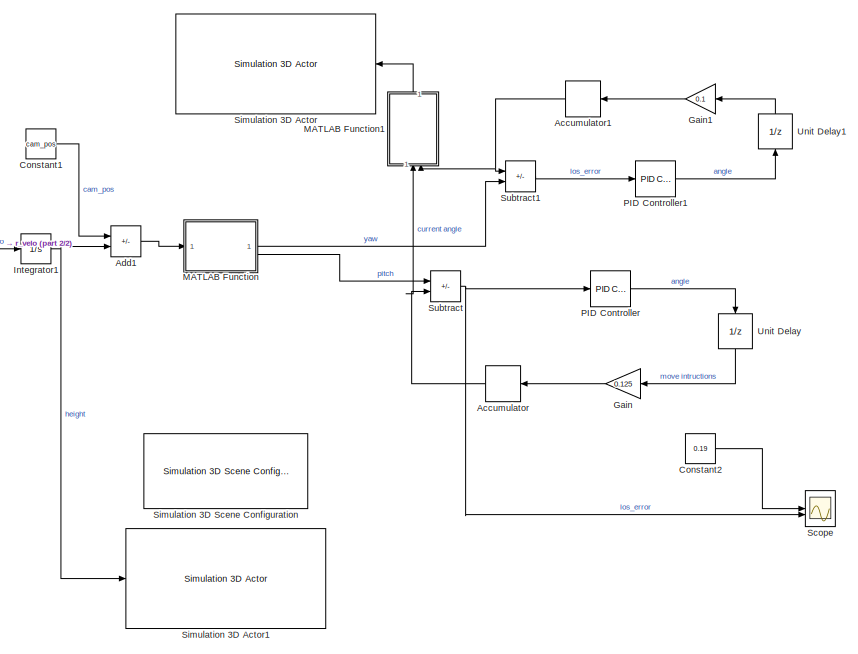
[diagram: root canvas - part 1/2, right side, full height]
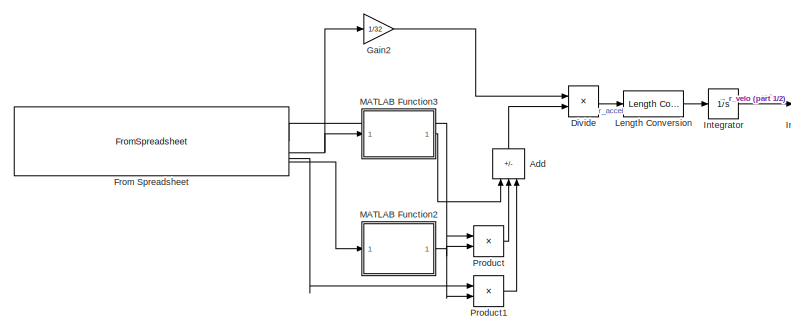
[diagram: root canvas - part 2/2, middle left region]
MODEL slx_5a3b48c3b5a7
KIND model
CONFIG AbsTol = auto
CONFIG EnableMultiTasking = off
CONFIG FixedStep = auto
CONFIG MaxStep = auto
CONFIG MinStep = auto
CONFIG RelTol = 1e-3
CONFIG SampleTimeConstraint = Unconstrained
CONFIG SolverName = VariableStepAuto
CONFIG StartTime = 0.0
CONFIG StopTime = 30
WORKSPACE source: mxarray member
WORKSPACE D = -0.000621609661279
WORKSPACE I = 0.087802518405
WORKSPACE N = 25.6156362926
WORKSPACE P = 2.22558760333
WORKSPACE cam_pos = [10 0 1]
WORKSPACE fov = 1.57079632679
WORKSPACE rocket_accel = [40 0 1000]
WORKSPACE sT = 0.0714285714286
WORKSPACE yawD = -0.0126517123405
WORKSPACE yawI = 0.00750088180469
WORKSPACE yawN = 3.59781859781
WORKSPACE yawP = 0.0524976391519
BLOCK [DiscreteIntegrator] Accumulator
  ICPrevOutput = DiscIntNeverNeededParam
  ICPrevScaledInput = DiscIntNeverNeededParam
  InitialConditionSetting = Auto
  IntegratorMethod = Accumulation: Forward Euler
  SampleTime = -1
BLOCK [DiscreteIntegrator] Accumulator1
  ICPrevOutput = DiscIntNeverNeededParam
  ICPrevScaledInput = DiscIntNeverNeededParam
  InitialConditionSetting = Auto
  IntegratorMethod = Accumulation: Forward Euler
  SampleTime = -1
BLOCK [Sum] Add
  IconShape = rectangular
  Inputs = -+-
  NameLocation = right
BLOCK [Sum] Add1
  IconShape = rectangular
  Inputs = -+
BLOCK [Constant] Constant1
  Value = cam_pos
  VectorParams1D = off
BLOCK [Constant] Constant2
  Value = 0.19
BLOCK [Product] Divide
  Inputs = /*
BLOCK [FromSpreadsheet] From Spreadsheet
  FileName = <userpath>\Documents\MATLAB\slprj\sim\varcache\ustarr_sim\tmwinternal\ringoV8_33ms.CSV
  Range = A1:A1000,H1:J1000,U1:U1000
  SheetName = ringoV8_33ms
BLOCK [Gain] Gain
  Gain = 0.125
BLOCK [Gain] Gain1
  Gain = 0.1
BLOCK [Gain] Gain2
  Gain = 1/32
BLOCK [Integrator] Integrator
BLOCK [Integrator] Integrator1
  InitialCondition = [500 0 1]
BLOCK [Reference] Length Conversion  REF=aerolibconvert2/Length Conversion
  SourceBlock = aerolibconvert2/Length Conversion
  SourceType = Length Conversion
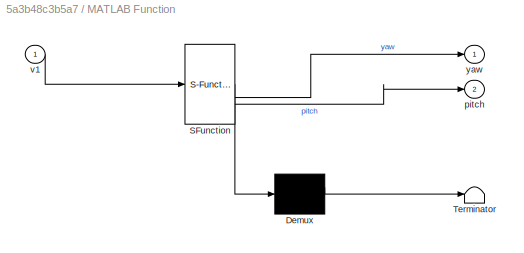
BLOCK [SubSystem] MATLAB Function
  ErrorFcn = Stateflow.Translate.translate
  PermitHierarchicalResolution = ExplicitOnly
  SFBlockType = MATLAB Function
  TreatAsAtomicUnit = on
BLOCK [Demux] MATLAB Function/ Demux 
  Outputs = 1
BLOCK [S-Function] MATLAB Function/ SFunction 
  EnableBusSupport = off
  FunctionName = sf_sfun
  PortCounts = [1 3]
  SFcnIsStateOwnerBlock = off
  SFunctionDeploymentMode = off
  Tag = Stateflow S-Function 2
BLOCK [Terminator] MATLAB Function/ Terminator 
BLOCK [Outport] MATLAB Function/pitch
  Port = 2
BLOCK [Inport] MATLAB Function/v1
BLOCK [Outport] MATLAB Function/yaw
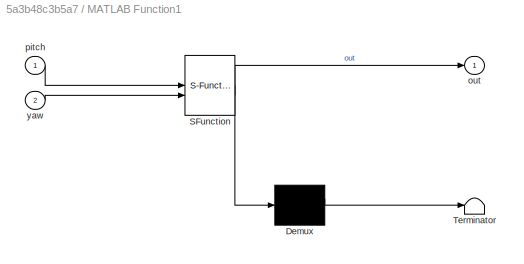
BLOCK [SubSystem] MATLAB Function1
  ErrorFcn = Stateflow.Translate.translate
  NameLocation = right
  PermitHierarchicalResolution = ExplicitOnly
  SFBlockType = MATLAB Function
  TreatAsAtomicUnit = on
BLOCK [Demux] MATLAB Function1/ Demux 
  Outputs = 1
BLOCK [S-Function] MATLAB Function1/ SFunction 
  EnableBusSupport = off
  FunctionName = sf_sfun
  PortCounts = [2 2]
  SFcnIsStateOwnerBlock = off
  SFunctionDeploymentMode = off
  Tag = Stateflow S-Function 1
BLOCK [Terminator] MATLAB Function1/ Terminator 
BLOCK [Outport] MATLAB Function1/out
BLOCK [Inport] MATLAB Function1/pitch
BLOCK [Inport] MATLAB Function1/yaw
  Port = 2
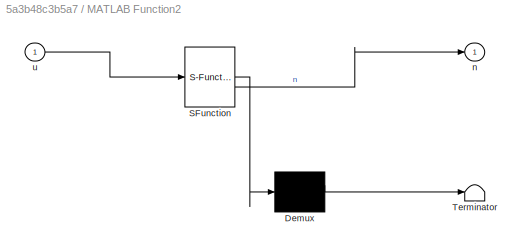
BLOCK [SubSystem] MATLAB Function2
  ErrorFcn = Stateflow.Translate.translate
  PermitHierarchicalResolution = ExplicitOnly
  SFBlockType = MATLAB Function
  TreatAsAtomicUnit = on
BLOCK [Demux] MATLAB Function2/ Demux 
  Outputs = 1
BLOCK [S-Function] MATLAB Function2/ SFunction 
  EnableBusSupport = off
  FunctionName = sf_sfun
  PortCounts = [1 2]
  SFcnIsStateOwnerBlock = off
  SFunctionDeploymentMode = off
  Tag = Stateflow S-Function 3
BLOCK [Terminator] MATLAB Function2/ Terminator 
BLOCK [Outport] MATLAB Function2/n
BLOCK [Inport] MATLAB Function2/u
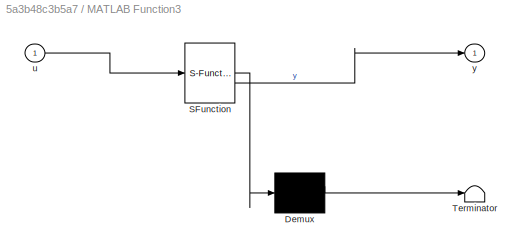
BLOCK [SubSystem] MATLAB Function3
  ErrorFcn = Stateflow.Translate.translate
  PermitHierarchicalResolution = ExplicitOnly
  SFBlockType = MATLAB Function
  TreatAsAtomicUnit = on
BLOCK [Demux] MATLAB Function3/ Demux 
  Outputs = 1
BLOCK [S-Function] MATLAB Function3/ SFunction 
  EnableBusSupport = off
  FunctionName = sf_sfun
  PortCounts = [1 2]
  SFcnIsStateOwnerBlock = off
  SFunctionDeploymentMode = off
  Tag = Stateflow S-Function 4
BLOCK [Terminator] MATLAB Function3/ Terminator 
BLOCK [Inport] MATLAB Function3/u
BLOCK [Outport] MATLAB Function3/y
BLOCK [Reference] PID Controller  REF=slpidlib/PID Controller
  LibrarySourceBlock = simulink/Continuous/PID Controller
  SourceBlock = slpidlib/PID Controller
  SourceType = PID 1dof
BLOCK [Reference] PID Controller1  REF=slpidlib/PID Controller
  LibrarySourceBlock = simulink/Continuous/PID Controller
  SourceBlock = slpidlib/PID Controller
  SourceType = PID 1dof
BLOCK [Product] Product
BLOCK [Product] Product1
BLOCK [Scope] Scope
  ActiveDisplayYMaximum = 1.5326415765282309
  ActiveDisplayYMinimum = -0.40826002227624414
  Floating = off
  GraphicalSettings = {"Style":{"BackgroundColor":[0.12941176470588237,0.12941176470588237,0.12941176470588237],"AxesColor":[0.07058823529411765,0.07058823529411765,0.07058823529411765],"LabelsColor":[0.8509803921568627,0.8509803921568627,0.8509803921568627],"PreserveColors":false,"Visible":[true,true],"LineStyle":["-","-"],"LineWidth":[1.5,1.5],"BarWidth":[0.9,0.9],"LineColor":["auto","auto"],"LineFaceAlpha":[1,1],"Li...<+2122ch>
  MultipleDisplayCache = [{"MaxYLimMag":1.2777160424211664,"MaxYLimReal":1.5326415765282309,"MinYLimMag":0,"MinYLimReal":-0.40826002227624414,"PlotAsMagnitudePhase":false,"ShowGrid":true,"ShowLegend":true,"Title":"%<SignalLabel>","YLabel":""}]
  NumInputPorts = 2
  ScopeFrameLocation = window
  ShowLegend = on
  WasSavedAsWebScope = on
  WindowPosition = [947.000000,331.000000,458.000000,318.000000,]
BLOCK [Reference] Simulation 3D Actor  REF=sim3dlib/Simulation 3D Actor
  LibrarySourceBlock = sl3dlib/Simulation 3D/Actors/Simulation 3D Actor
  NameLocation = top
  Priority = 1
  SourceBlock = sim3dlib/Simulation 3D Actor
  SourceType = Simulation 3D Actor
BLOCK [Reference] Simulation 3D Actor1  REF=sim3dlib/Simulation 3D Actor
  LibrarySourceBlock = sl3dlib/Simulation 3D/Actors/Simulation 3D Actor
  Priority = 1
  SourceBlock = sim3dlib/Simulation 3D Actor
  SourceType = Simulation 3D Actor
BLOCK [Reference] Simulation 3D Scene Configuration  REF=sim3dlib/Simulation 3D Scene Configuration
  LibrarySourceBlock = aerolibsim3d/Simulation 3D Scene Configuration
  Priority = 0
  SourceBlock = sim3dlib/Simulation 3D Scene Configuration
  SourceType = Simulation 3D Scene Configuration
BLOCK [Sum] Subtract
  IconShape = rectangular
  Inputs = +-
BLOCK [Sum] Subtract1
  IconShape = rectangular
  Inputs = -+
BLOCK [UnitDelay] Unit Delay
  HasFrameUpgradeWarning = on
  NameLocation = left
  SampleTime = sT
BLOCK [UnitDelay] Unit Delay1
  HasFrameUpgradeWarning = on
  NameLocation = right
  SampleTime = sT
NET Accumulator1:1 -> MATLAB Function1:2, Subtract1:1
NET Accumulator:1 -> MATLAB Function1:1, Subtract:2
LINE Add1:1 -> MATLAB Function:1
LINE Add:1 -> Divide:2
LINE Constant1:1 -> Add1:1
LINE Constant2:1 -> Scope:1
LINE Divide:1 -> Length Conversion:1
LINE From Spreadsheet:1 -> Product:1
NET From Spreadsheet:2 -> Gain2:1, MATLAB Function3:1
LINE From Spreadsheet:3 -> Product1:1
LINE From Spreadsheet:4 -> MATLAB Function2:1
LINE Gain1:1 -> Accumulator1:1
LINE Gain2:1 -> Divide:1
LINE Gain:1 -> Accumulator:1
NET Integrator1:1 -> Add1:2, Simulation 3D Actor1:1
LINE Integrator:1 -> Integrator1:1
LINE Length Conversion:1 -> Integrator:1
LINE MATLAB Function1:1 -> Simulation 3D Actor:1
NET MATLAB Function2:1 -> Product1:2, Product:2
LINE MATLAB Function3:1 -> Add:1
LINE MATLAB Function:1 -> Subtract1:2
LINE MATLAB Function:2 -> Subtract:1
LINE PID Controller1:1 -> Unit Delay1:1
LINE PID Controller:1 -> Unit Delay:1
LINE Product1:1 -> Add:3
LINE Product:1 -> Add:2
LINE Subtract1:1 -> PID Controller1:1
NET Subtract:1 -> PID Controller:1, Scope:2
LINE Unit Delay1:1 -> Gain1:1
LINE Unit Delay:1 -> Gain:1
note: NET lines group one-source signal fan-out (src -> all destinations, sorted); 1:1 wires keep LINE
CHART MATLAB Function states=1 transitions=1
  STATE_LABEL 'eML_blk_kernel()'
  STATE_LABEL 'SCRIPT:\nfunction [yaw, pitch]= fcn(v1)\npitch = atan2(v1(3),v1(1));\nyaw = atan2(v1(2),v1(1));\n\n'
CHART MATLAB Function2 states=1 transitions=1
  STATE_LABEL 'eML_blk_kernel()'
  STATE_LABEL 'SCRIPT:\nfunction n = fcn(u)\n\ny = 0;\nx = cosd(u);\nz = sind(u);\nn = [x y z];'
CHART MATLAB Function3 states=1 transitions=1
  STATE_LABEL 'eML_blk_kernel()'
  STATE_LABEL 'SCRIPT:\nfunction y = fcn(u)\n\ny = [0 0 u];\n'
CHART MATLAB Function1 states=1 transitions=1
  STATE_LABEL 'eML_blk_kernel()'
  STATE_LABEL 'SCRIPT:\nfunction out = fcn(pitch,yaw)\nout = [0,pitch,yaw];'
CHART  states=0 transitions=0
CHART  states=0 transitions=0
CHART  states=0 transitions=0
CHART  states=0 transitions=0
